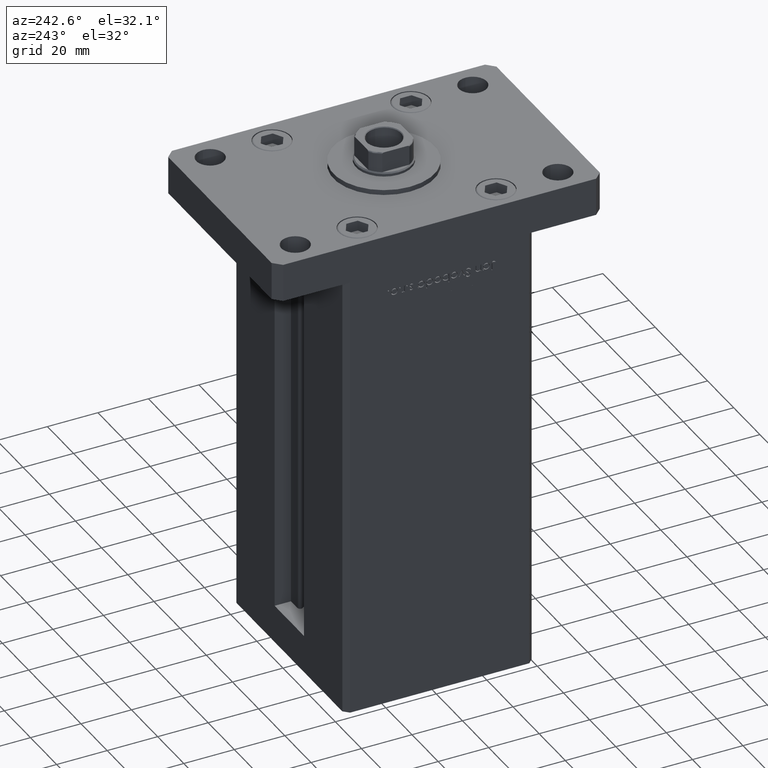
[diagram: clean part render]
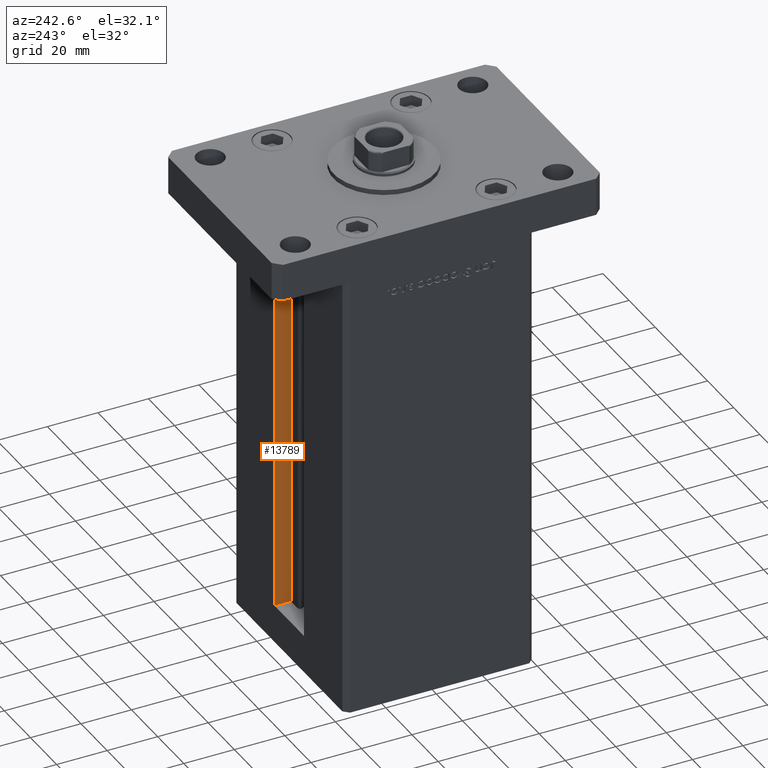
[diagram: same view with one face highlighted and labeled with its STEP entity id]
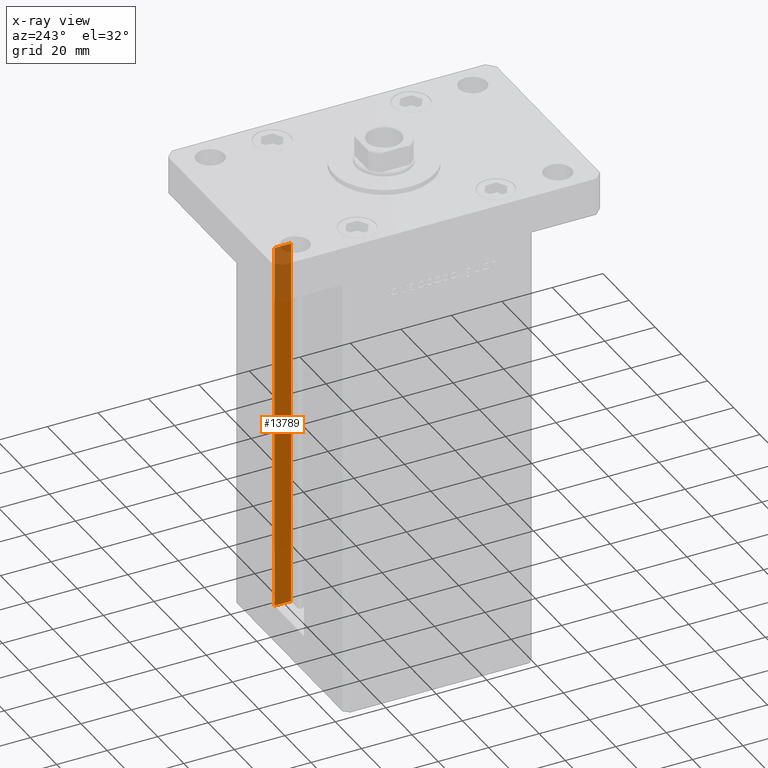
[diagram: x-ray of the same camera — body ghosted, the highlighted face saturated]
A machine part, auxiliary view. The second image highlights one B-rep face of the part: STEP entity #13789.
The next image is the same camera in x-ray: the body ghosted, the highlighted face saturated — about 15% of this face is hidden behind the body in this view.
In plain terms, the highlighted planar face has unit normal (1, 0, 0).
Its self-contained STEP definition (entity closure, byte-faithful):
#341 = EDGE_LOOP ( 'NONE', ( #28580, #31309, #18882, #18626 ) ) ;
#3955 = AXIS2_PLACEMENT_3D ( 'NONE', #7488, #8022, #48123 ) ;
#4520 = CARTESIAN_POINT ( 'NONE',  ( 11.25000000000000000, 30.99999999999999289, 0.000000000000000000 ) ) ;
#4886 = VECTOR ( 'NONE', #11799, 1000.000000000000000 ) ;
#6305 = EDGE_CURVE ( 'NONE', #35132, #48869, #30558, .T. ) ;
#6559 = LINE ( 'NONE', #10079, #32498 ) ;
#7488 = CARTESIAN_POINT ( 'NONE',  ( 11.25000000000000000, 30.99999999999999289, 0.000000000000000000 ) ) ;
#8022 = DIRECTION ( 'NONE',  ( 1.000000000000000000, -0.000000000000000000, 0.000000000000000000 ) ) ;
#10079 = CARTESIAN_POINT ( 'NONE',  ( 11.25000000000000000, 37.50000000000000000, 0.000000000000000000 ) ) ;
#11799 = DIRECTION ( 'NONE',  ( 0.000000000000000000, 1.000000000000000000, 0.000000000000000000 ) ) ;
#11938 = EDGE_CURVE ( 'NONE', #47919, #35132, #6559, .T. ) ;
#12075 = PLANE ( 'NONE',  #3955 ) ;
#12330 = CARTESIAN_POINT ( 'NONE',  ( 11.25000000000000000, 30.99999999999999289, 0.000000000000000000 ) ) ;
#13725 = EDGE_CURVE ( 'NONE', #25836, #48869, #26464, .T. ) ;
#13789 = ADVANCED_FACE ( 'NONE', ( #49208 ), #12075, .F. ) ;
#14545 = CARTESIAN_POINT ( 'NONE',  ( 11.25000000000000000, 30.99999999999999289, 0.000000000000000000 ) ) ;
#18082 = DIRECTION ( 'NONE',  ( -0.000000000000000000, -0.000000000000000000, 1.000000000000000000 ) ) ;
#18626 = ORIENTED_EDGE ( 'NONE', *, *, #6305, .F. ) ;
#18882 = ORIENTED_EDGE ( 'NONE', *, *, #13725, .T. ) ;
#19165 = CARTESIAN_POINT ( 'NONE',  ( 11.25000000000000000, 0.000000000000000000, 148.5000000000000000 ) ) ;
#24262 = CARTESIAN_POINT ( 'NONE',  ( 11.25000000000000000, 30.99999999999999289, 148.5000000000000000 ) ) ;
#25836 = VERTEX_POINT ( 'NONE', #4520 ) ;
#26464 = LINE ( 'NONE', #14545, #33381 ) ;
#26610 = DIRECTION ( 'NONE',  ( -0.000000000000000000, -0.000000000000000000, 1.000000000000000000 ) ) ;
#28580 = ORIENTED_EDGE ( 'NONE', *, *, #11938, .F. ) ;
#30558 = LINE ( 'NONE', #19165, #53095 ) ;
#31309 = ORIENTED_EDGE ( 'NONE', *, *, #53299, .F. ) ;
#32498 = VECTOR ( 'NONE', #26610, 1000.000000000000000 ) ;
#33381 = VECTOR ( 'NONE', #18082, 1000.000000000000000 ) ;
#35132 = VERTEX_POINT ( 'NONE', #44242 ) ;
#39221 = DIRECTION ( 'NONE',  ( -0.000000000000000000, -1.000000000000000000, 0.000000000000000000 ) ) ;
#44242 = CARTESIAN_POINT ( 'NONE',  ( 11.24999999999999289, 37.50000000000000000, 148.5000000000000000 ) ) ;
#46722 = CARTESIAN_POINT ( 'NONE',  ( 11.25000000000000000, 37.50000000000000000, 0.000000000000000000 ) ) ;
#47919 = VERTEX_POINT ( 'NONE', #46722 ) ;
#48123 = DIRECTION ( 'NONE',  ( 0.000000000000000000, 0.000000000000000000, -1.000000000000000000 ) ) ;
#48869 = VERTEX_POINT ( 'NONE', #24262 ) ;
#49208 = FACE_OUTER_BOUND ( 'NONE', #341, .T. ) ;
#53095 = VECTOR ( 'NONE', #39221, 1000.000000000000000 ) ;
#53299 = EDGE_CURVE ( 'NONE', #25836, #47919, #53530, .T. ) ;
#53530 = LINE ( 'NONE', #12330, #4886 ) ;